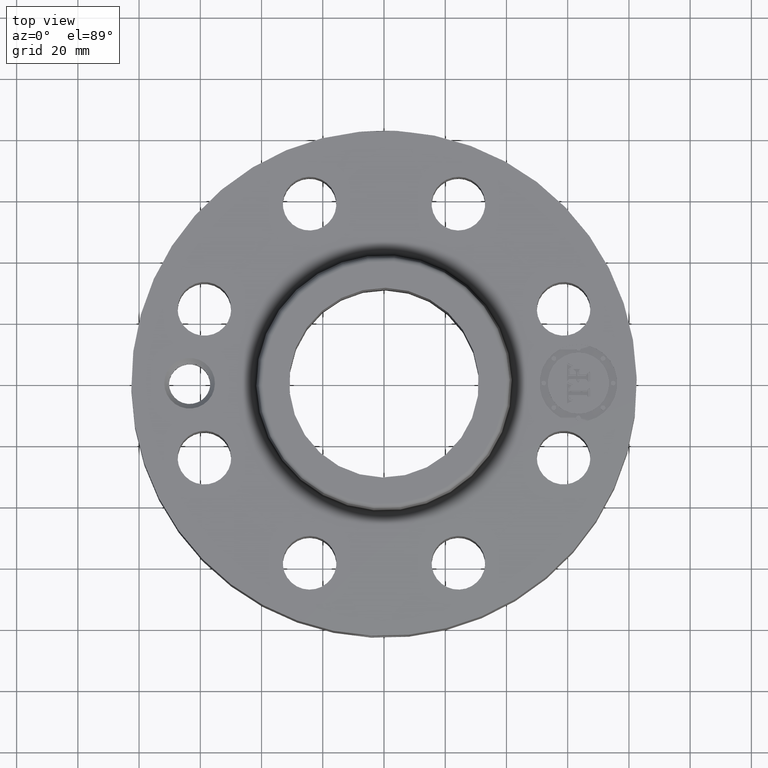
[diagram: clean part render]
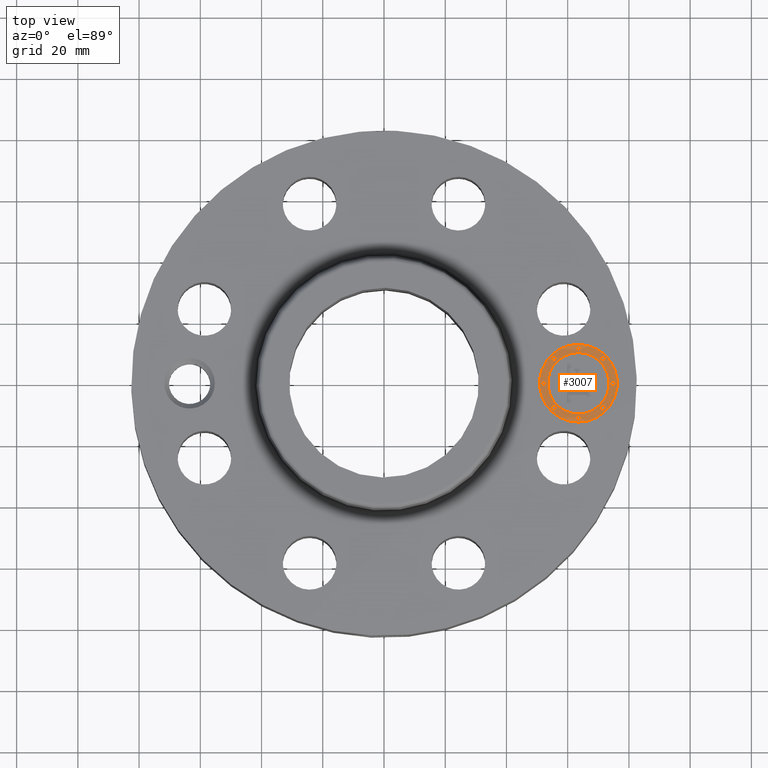
[diagram: same view with one face highlighted and labeled with its STEP entity id]
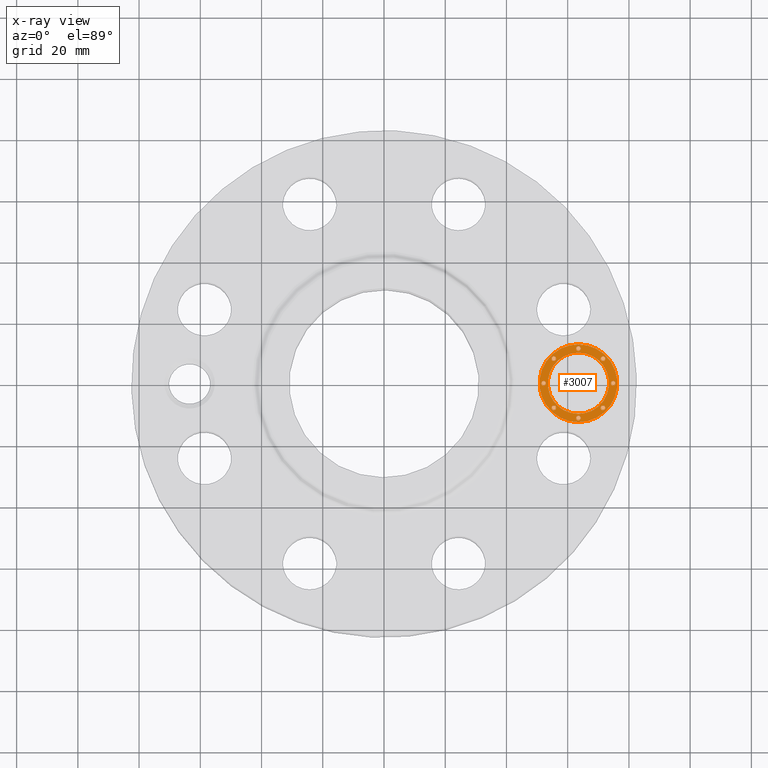
[diagram: x-ray of the same camera — body ghosted, the highlighted face saturated]
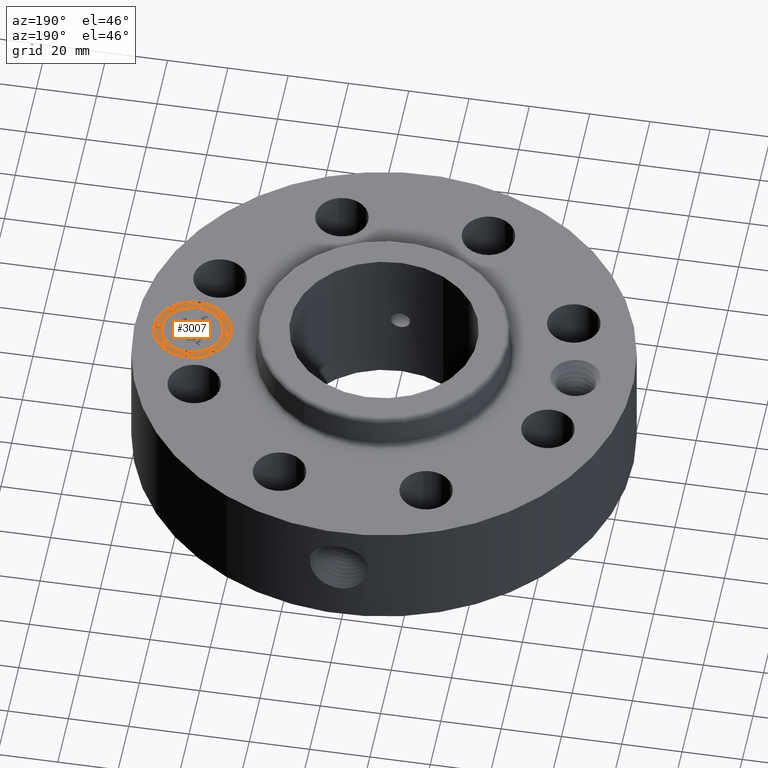
[diagram: same view with one face highlighted and labeled with its STEP entity id]
A machine part, top view. The second image highlights one B-rep face of the part: STEP entity #3007.
The next image is the same camera in x-ray: the body ghosted, the highlighted face saturated — about 0% of this face is hidden behind the body in this view.
A second angle (auxiliary view) of the same face is appended — the face is thin or edge-on in the first view.
In plain terms, the highlighted planar face has unit normal (0, 0, 1).
Its self-contained STEP definition (entity closure, byte-faithful):
#2216=AXIS2_PLACEMENT_3D('Circle Axis2P3D',#2214,#2215,$) ;
#2243=AXIS2_PLACEMENT_3D('Circle Axis2P3D',#2241,#2242,$) ;
#2839=AXIS2_PLACEMENT_3D('Plane Axis2P3D',#2836,#2837,#2838) ;
#2847=AXIS2_PLACEMENT_3D('Circle Axis2P3D',#2845,#2846,$) ;
#2856=AXIS2_PLACEMENT_3D('Circle Axis2P3D',#2854,#2855,$) ;
#2865=AXIS2_PLACEMENT_3D('Circle Axis2P3D',#2863,#2864,$) ;
#2874=AXIS2_PLACEMENT_3D('Circle Axis2P3D',#2872,#2873,$) ;
#2883=AXIS2_PLACEMENT_3D('Circle Axis2P3D',#2881,#2882,$) ;
#2892=AXIS2_PLACEMENT_3D('Circle Axis2P3D',#2890,#2891,$) ;
#2901=AXIS2_PLACEMENT_3D('Circle Axis2P3D',#2899,#2900,$) ;
#2910=AXIS2_PLACEMENT_3D('Circle Axis2P3D',#2908,#2909,$) ;
#2919=AXIS2_PLACEMENT_3D('Circle Axis2P3D',#2917,#2918,$) ;
#2928=AXIS2_PLACEMENT_3D('Circle Axis2P3D',#2926,#2927,$) ;
#2937=AXIS2_PLACEMENT_3D('Circle Axis2P3D',#2935,#2936,$) ;
#2946=AXIS2_PLACEMENT_3D('Circle Axis2P3D',#2944,#2945,$) ;
#2955=AXIS2_PLACEMENT_3D('Circle Axis2P3D',#2953,#2954,$) ;
#2964=AXIS2_PLACEMENT_3D('Circle Axis2P3D',#2962,#2963,$) ;
#2973=AXIS2_PLACEMENT_3D('Circle Axis2P3D',#2971,#2972,$) ;
#2982=AXIS2_PLACEMENT_3D('Circle Axis2P3D',#2980,#2981,$) ;
#2991=AXIS2_PLACEMENT_3D('Circle Axis2P3D',#2989,#2990,$) ;
#3000=AXIS2_PLACEMENT_3D('Circle Axis2P3D',#2998,#2999,$) ;
#2211=CARTESIAN_POINT('Vertex',(2.50000000001,-0.499999995002,1.54500000001)) ;
#2214=CARTESIAN_POINT('Axis2P3D Location',(2.50000000001,0.,1.54500000001)) ;
#2218=CARTESIAN_POINT('Vertex',(2.50000000001,0.499999995002,1.54500000001)) ;
#2241=CARTESIAN_POINT('Axis2P3D Location',(2.50000000001,0.,1.54500000001)) ;
#2836=CARTESIAN_POINT('Axis2P3D Location',(0.,0.,1.54500000001)) ;
#2845=CARTESIAN_POINT('Axis2P3D Location',(2.50000000001,0.,1.54500000001)) ;
#2849=CARTESIAN_POINT('Vertex',(2.50000000001,-0.393939390002,1.54500000001)) ;
#2851=CARTESIAN_POINT('Vertex',(2.50000000001,0.393939390002,1.54500000001)) ;
#2854=CARTESIAN_POINT('Axis2P3D Location',(2.50000000001,0.,1.54500000001)) ;
#2863=CARTESIAN_POINT('Axis2P3D Location',(2.05303030751,-1.27155105343E-015,1.54500000001)) ;
#2867=CARTESIAN_POINT('Vertex',(2.05303030751,-0.0303030300001,1.54500000001)) ;
#2869=CARTESIAN_POINT('Vertex',(2.05303030751,0.0303030300001,1.54500000001)) ;
#2872=CARTESIAN_POINT('Axis2P3D Location',(2.05303030751,-1.27155105343E-015,1.54500000001)) ;
#2881=CARTESIAN_POINT('Axis2P3D Location',(2.50000000001,0.446969692502,1.54500000001)) ;
#2885=CARTESIAN_POINT('Vertex',(2.50000000001,0.416666662502,1.54500000001)) ;
#2887=CARTESIAN_POINT('Vertex',(2.50000000001,0.477272722502,1.54500000001)) ;
#2890=CARTESIAN_POINT('Axis2P3D Location',(2.50000000001,0.446969692502,1.54500000001)) ;
#2899=CARTESIAN_POINT('Axis2P3D Location',(2.18394469946,0.316055300553,1.54500000001)) ;
#2903=CARTESIAN_POINT('Vertex',(2.18394469946,0.285752270553,1.54500000001)) ;
#2905=CARTESIAN_POINT('Vertex',(2.18394469946,0.346358330553,1.54500000001)) ;
#2908=CARTESIAN_POINT('Axis2P3D Location',(2.18394469946,0.316055300553,1.54500000001)) ;
#2917=CARTESIAN_POINT('Axis2P3D Location',(2.94696969251,1.17265263816E-014,1.54500000001)) ;
#2921=CARTESIAN_POINT('Vertex',(2.94696969251,-0.0303030300001,1.54500000001)) ;
#2923=CARTESIAN_POINT('Vertex',(2.94696969251,0.0303030300001,1.54500000001)) ;
#2926=CARTESIAN_POINT('Axis2P3D Location',(2.94696969251,1.17265263816E-014,1.54500000001)) ;
#2935=CARTESIAN_POINT('Axis2P3D Location',(2.81605530056,0.316055300553,1.54500000001)) ;
#2939=CARTESIAN_POINT('Vertex',(2.81605530056,0.285752270553,1.54500000001)) ;
#2941=CARTESIAN_POINT('Vertex',(2.81605530056,0.346358330553,1.54500000001)) ;
#2944=CARTESIAN_POINT('Axis2P3D Location',(2.81605530056,0.316055300553,1.54500000001)) ;
#2953=CARTESIAN_POINT('Axis2P3D Location',(2.50000000001,-0.446969692502,1.54500000001)) ;
#2957=CARTESIAN_POINT('Vertex',(2.50000000001,-0.416666662502,1.54500000001)) ;
#2959=CARTESIAN_POINT('Vertex',(2.50000000001,-0.477272722502,1.54500000001)) ;
#2962=CARTESIAN_POINT('Axis2P3D Location',(2.50000000001,-0.446969692502,1.54500000001)) ;
#2971=CARTESIAN_POINT('Axis2P3D Location',(2.18394469946,-0.316055300553,1.54500000001)) ;
#2975=CARTESIAN_POINT('Vertex',(2.18394469946,-0.285752270553,1.54500000001)) ;
#2977=CARTESIAN_POINT('Vertex',(2.18394469946,-0.346358330553,1.54500000001)) ;
#2980=CARTESIAN_POINT('Axis2P3D Location',(2.18394469946,-0.316055300553,1.54500000001)) ;
#2989=CARTESIAN_POINT('Axis2P3D Location',(2.81605530056,-0.316055300553,1.54500000001)) ;
#2993=CARTESIAN_POINT('Vertex',(2.81605530056,-0.285752270553,1.54500000001)) ;
#2995=CARTESIAN_POINT('Vertex',(2.81605530056,-0.346358330553,1.54500000001)) ;
#2998=CARTESIAN_POINT('Axis2P3D Location',(2.81605530056,-0.316055300553,1.54500000001)) ;
#2215=DIRECTION('Axis2P3D Direction',(0.,0.,0.0393700787402)) ;
#2242=DIRECTION('Axis2P3D Direction',(0.,0.,0.0393700787402)) ;
#2837=DIRECTION('Axis2P3D Direction',(0.,0.,0.0393700787402)) ;
#2838=DIRECTION('Axis2P3D XDirection',(0.0393700787402,0.,0.)) ;
#2846=DIRECTION('Axis2P3D Direction',(0.,0.,0.0393700787402)) ;
#2855=DIRECTION('Axis2P3D Direction',(0.,0.,0.0393700787402)) ;
#2864=DIRECTION('Axis2P3D Direction',(0.,0.,0.0393700787402)) ;
#2873=DIRECTION('Axis2P3D Direction',(0.,0.,0.0393700787402)) ;
#2882=DIRECTION('Axis2P3D Direction',(0.,0.,0.0393700787402)) ;
#2891=DIRECTION('Axis2P3D Direction',(0.,0.,0.0393700787402)) ;
#2900=DIRECTION('Axis2P3D Direction',(0.,0.,0.0393700787402)) ;
#2909=DIRECTION('Axis2P3D Direction',(0.,0.,0.0393700787402)) ;
#2918=DIRECTION('Axis2P3D Direction',(0.,0.,0.0393700787402)) ;
#2927=DIRECTION('Axis2P3D Direction',(0.,0.,0.0393700787402)) ;
#2936=DIRECTION('Axis2P3D Direction',(0.,0.,0.0393700787402)) ;
#2945=DIRECTION('Axis2P3D Direction',(0.,0.,0.0393700787402)) ;
#2954=DIRECTION('Axis2P3D Direction',(0.,0.,0.0393700787402)) ;
#2963=DIRECTION('Axis2P3D Direction',(0.,0.,0.0393700787402)) ;
#2972=DIRECTION('Axis2P3D Direction',(0.,0.,0.0393700787402)) ;
#2981=DIRECTION('Axis2P3D Direction',(0.,0.,0.0393700787402)) ;
#2990=DIRECTION('Axis2P3D Direction',(0.,0.,0.0393700787402)) ;
#2999=DIRECTION('Axis2P3D Direction',(0.,0.,0.0393700787402)) ;
#2842=ORIENTED_EDGE('',*,*,#2220,.T.) ;
#2843=ORIENTED_EDGE('',*,*,#2245,.T.) ;
#2860=ORIENTED_EDGE('',*,*,#2853,.F.) ;
#2861=ORIENTED_EDGE('',*,*,#2858,.F.) ;
#2878=ORIENTED_EDGE('',*,*,#2871,.F.) ;
#2879=ORIENTED_EDGE('',*,*,#2876,.F.) ;
#2896=ORIENTED_EDGE('',*,*,#2889,.F.) ;
#2897=ORIENTED_EDGE('',*,*,#2894,.F.) ;
#2914=ORIENTED_EDGE('',*,*,#2907,.F.) ;
#2915=ORIENTED_EDGE('',*,*,#2912,.F.) ;
#2932=ORIENTED_EDGE('',*,*,#2925,.F.) ;
#2933=ORIENTED_EDGE('',*,*,#2930,.F.) ;
#2950=ORIENTED_EDGE('',*,*,#2943,.F.) ;
#2951=ORIENTED_EDGE('',*,*,#2948,.F.) ;
#2968=ORIENTED_EDGE('',*,*,#2961,.F.) ;
#2969=ORIENTED_EDGE('',*,*,#2966,.F.) ;
#2986=ORIENTED_EDGE('',*,*,#2979,.F.) ;
#2987=ORIENTED_EDGE('',*,*,#2984,.F.) ;
#3004=ORIENTED_EDGE('',*,*,#2997,.F.) ;
#3005=ORIENTED_EDGE('',*,*,#3002,.F.) ;
#2862=FACE_BOUND('',#2859,.T.) ;
#2880=FACE_BOUND('',#2877,.T.) ;
#2898=FACE_BOUND('',#2895,.T.) ;
#2916=FACE_BOUND('',#2913,.T.) ;
#2934=FACE_BOUND('',#2931,.T.) ;
#2952=FACE_BOUND('',#2949,.T.) ;
#2970=FACE_BOUND('',#2967,.T.) ;
#2988=FACE_BOUND('',#2985,.T.) ;
#3006=FACE_BOUND('',#3003,.T.) ;
#3007=ADVANCED_FACE('PartBody',(#2844,#2862,#2880,#2898,#2916,#2934,#2952,#2970,#2988,#3006),#2840,.T.) ;
#2217=CIRCLE('generated circle',#2216,0.499999995002) ;
#2244=CIRCLE('generated circle',#2243,0.499999995002) ;
#2848=CIRCLE('generated circle',#2847,0.393939390002) ;
#2857=CIRCLE('generated circle',#2856,0.393939390002) ;
#2866=CIRCLE('generated circle',#2865,0.0303030300001) ;
#2875=CIRCLE('generated circle',#2874,0.0303030300001) ;
#2884=CIRCLE('generated circle',#2883,0.0303030300001) ;
#2893=CIRCLE('generated circle',#2892,0.0303030300001) ;
#2902=CIRCLE('generated circle',#2901,0.0303030300001) ;
#2911=CIRCLE('generated circle',#2910,0.0303030300001) ;
#2920=CIRCLE('generated circle',#2919,0.0303030300001) ;
#2929=CIRCLE('generated circle',#2928,0.0303030300001) ;
#2938=CIRCLE('generated circle',#2937,0.0303030300001) ;
#2947=CIRCLE('generated circle',#2946,0.0303030300001) ;
#2956=CIRCLE('generated circle',#2955,0.0303030300001) ;
#2965=CIRCLE('generated circle',#2964,0.0303030300001) ;
#2974=CIRCLE('generated circle',#2973,0.0303030300001) ;
#2983=CIRCLE('generated circle',#2982,0.0303030300001) ;
#2992=CIRCLE('generated circle',#2991,0.0303030300001) ;
#3001=CIRCLE('generated circle',#3000,0.0303030300001) ;
#2220=EDGE_CURVE('',#2219,#2212,#2217,.T.) ;
#2245=EDGE_CURVE('',#2212,#2219,#2244,.T.) ;
#2853=EDGE_CURVE('',#2850,#2852,#2848,.T.) ;
#2858=EDGE_CURVE('',#2852,#2850,#2857,.T.) ;
#2871=EDGE_CURVE('',#2868,#2870,#2866,.T.) ;
#2876=EDGE_CURVE('',#2870,#2868,#2875,.T.) ;
#2889=EDGE_CURVE('',#2886,#2888,#2884,.T.) ;
#2894=EDGE_CURVE('',#2888,#2886,#2893,.T.) ;
#2907=EDGE_CURVE('',#2904,#2906,#2902,.T.) ;
#2912=EDGE_CURVE('',#2906,#2904,#2911,.T.) ;
#2925=EDGE_CURVE('',#2922,#2924,#2920,.T.) ;
#2930=EDGE_CURVE('',#2924,#2922,#2929,.T.) ;
#2943=EDGE_CURVE('',#2940,#2942,#2938,.T.) ;
#2948=EDGE_CURVE('',#2942,#2940,#2947,.T.) ;
#2961=EDGE_CURVE('',#2958,#2960,#2956,.T.) ;
#2966=EDGE_CURVE('',#2960,#2958,#2965,.T.) ;
#2979=EDGE_CURVE('',#2976,#2978,#2974,.T.) ;
#2984=EDGE_CURVE('',#2978,#2976,#2983,.T.) ;
#2997=EDGE_CURVE('',#2994,#2996,#2992,.T.) ;
#3002=EDGE_CURVE('',#2996,#2994,#3001,.T.) ;
#2841=EDGE_LOOP('',(#2842,#2843)) ;
#2859=EDGE_LOOP('',(#2860,#2861)) ;
#2877=EDGE_LOOP('',(#2878,#2879)) ;
#2895=EDGE_LOOP('',(#2896,#2897)) ;
#2913=EDGE_LOOP('',(#2914,#2915)) ;
#2931=EDGE_LOOP('',(#2932,#2933)) ;
#2949=EDGE_LOOP('',(#2950,#2951)) ;
#2967=EDGE_LOOP('',(#2968,#2969)) ;
#2985=EDGE_LOOP('',(#2986,#2987)) ;
#3003=EDGE_LOOP('',(#3004,#3005)) ;
#2844=FACE_OUTER_BOUND('',#2841,.T.) ;
#2840=PLANE('',#2839) ;
#2212=VERTEX_POINT('',#2211) ;
#2219=VERTEX_POINT('',#2218) ;
#2850=VERTEX_POINT('',#2849) ;
#2852=VERTEX_POINT('',#2851) ;
#2868=VERTEX_POINT('',#2867) ;
#2870=VERTEX_POINT('',#2869) ;
#2886=VERTEX_POINT('',#2885) ;
#2888=VERTEX_POINT('',#2887) ;
#2904=VERTEX_POINT('',#2903) ;
#2906=VERTEX_POINT('',#2905) ;
#2922=VERTEX_POINT('',#2921) ;
#2924=VERTEX_POINT('',#2923) ;
#2940=VERTEX_POINT('',#2939) ;
#2942=VERTEX_POINT('',#2941) ;
#2958=VERTEX_POINT('',#2957) ;
#2960=VERTEX_POINT('',#2959) ;
#2976=VERTEX_POINT('',#2975) ;
#2978=VERTEX_POINT('',#2977) ;
#2994=VERTEX_POINT('',#2993) ;
#2996=VERTEX_POINT('',#2995) ;